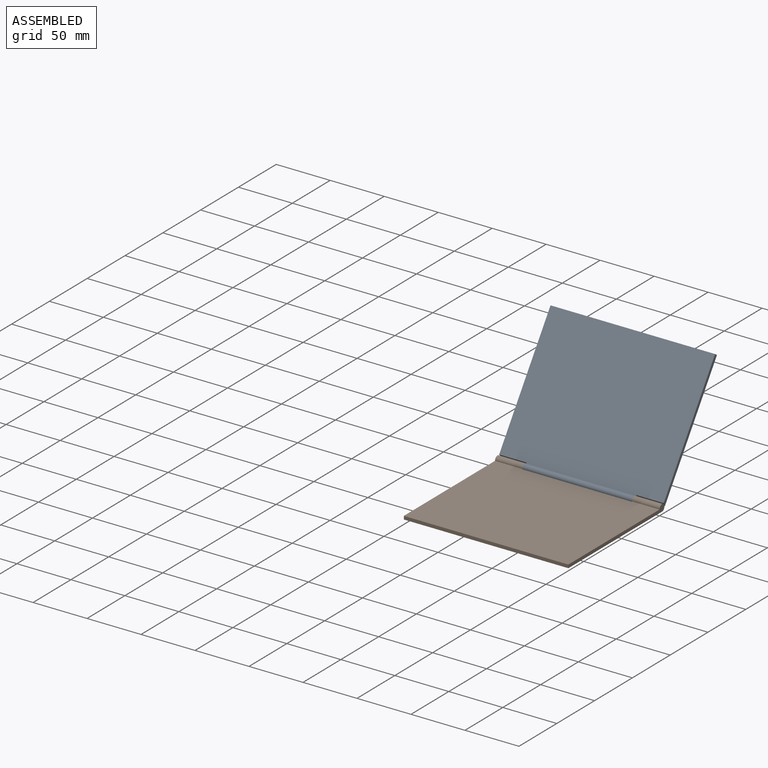
[diagram: assembled view]
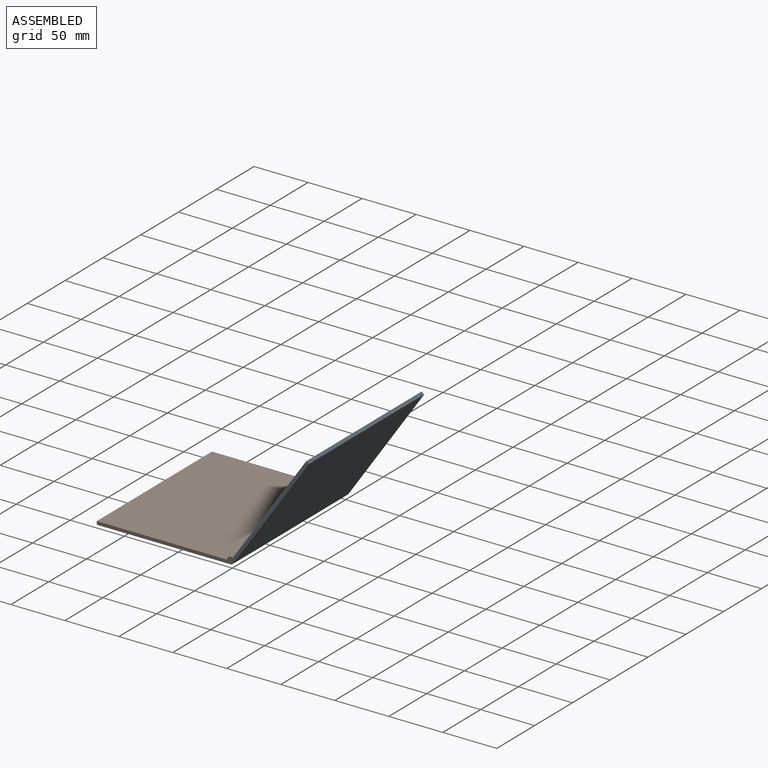
[diagram: assembled view, second angle]
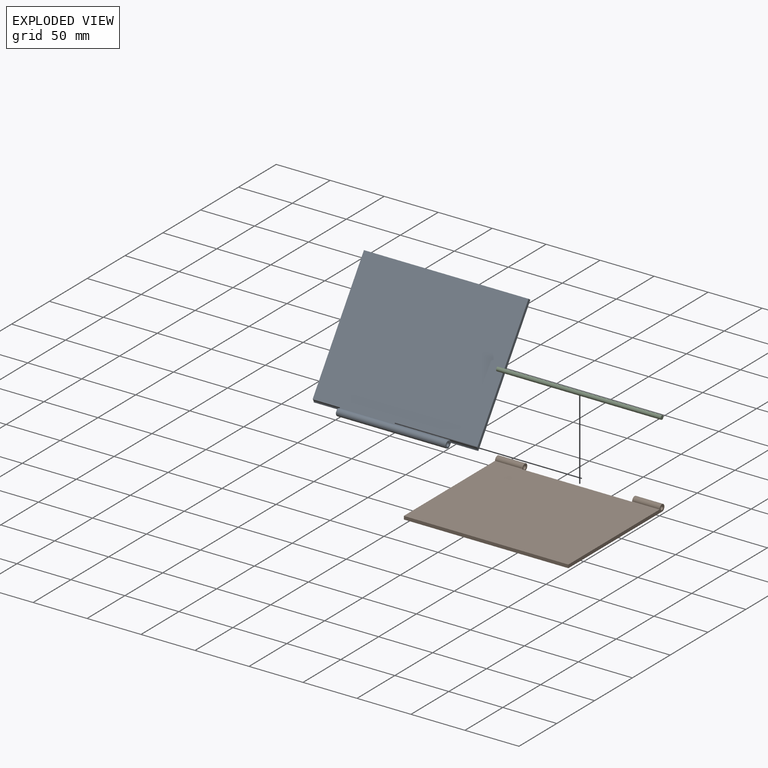
[diagram: exploded view]
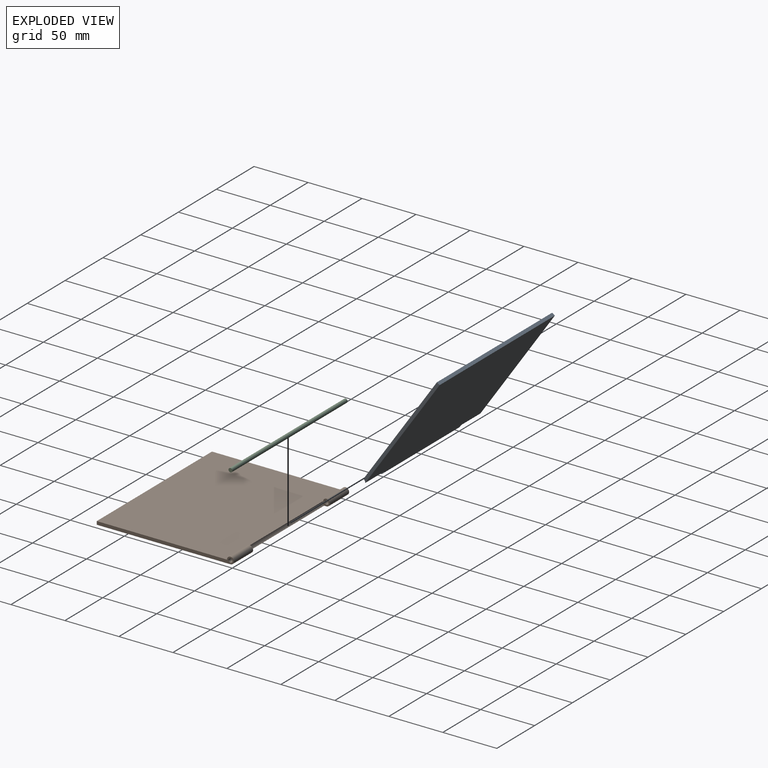
[diagram: exploded view, second angle]
ASSEMBLY  parts=3 mates=2
PART A: 11 faces, bbox 152.4x127x6.4 mm
  f0: cylinder r=3.17mm len=101.6mm, axis (-1,0,0), area 1533mm2, adj f1,f2,f6,f9
  f1: plane 152.4x123.83mm, normal (0,0,-1), area 18763.9mm2, adj f0,f3,f4,f5,f6,f7,f8,f9
  f2: plane 152.4x120.65mm, normal (0,0,1), area 18355.2mm2, adj f0,f3,f4,f5,f6,f7,f8,f9
  f3: plane 121.72x3.05mm, normal (1,0,0), area 367.4mm2, adj f1,f2,f4,f8
  f4: plane 152.4x3.05mm, normal (0,1,0), area 464.5mm2, adj f1,f2,f3,f5
  f5: plane 121.72x3.05mm, normal (-1,0,0), area 367.4mm2, adj f1,f2,f4,f7
  f6: plane 6.98x6.35mm, normal (-1,0,0), area 23.5mm2, adj f0,f1,f2,f7,f10
  f7: cylinder r=3.81mm len=25.4mm, axis (-1,0,0), area 92.1mm2, adj f1,f2,f5,f6
  f8: cylinder r=3.81mm len=25.4mm, axis (-1,0,0), area 92.1mm2, adj f1,f2,f3,f9
  f9: plane 6.98x6.35mm, normal (1,0,0), area 23.5mm2, adj f0,f1,f2,f8,f10
  f10: cylinder r=1.84mm len=101.6mm, axis (-1,0,0), area 1175.6mm2, adj f6,f9
PART B: 12 faces, bbox 152.4x127x6.4 mm
  f0: cylinder r=3.17mm len=25.4mm, axis (-1,0,0), area 383.3mm2, adj f3,f5,f8,f11
  f1: cylinder r=1.82mm len=25.4mm, axis (-1,0,0), area 289.8mm2, adj f8,f11
  f2: plane 152.4x3.05mm, normal (0,-1,0), area 464.5mm2, adj f3,f5,f7,f8
  f3: plane 152.4x123.83mm, normal (0,0,-1), area 18657mm2, adj f0,f2,f4,f7,f8,f9,f10,f11
  f4: cylinder r=3.17mm len=25.4mm, axis (-1,0,0), area 383.3mm2, adj f3,f5,f7,f10
  f5: plane 152.4x120.65mm, normal (0,0,1), area 18322.9mm2, adj f0,f2,f4,f7,f8,f9,f10,f11
  f6: cylinder r=1.82mm len=25.4mm, axis (-1,0,0), area 289.8mm2, adj f7,f10
  f7: plane 127x6.35mm, normal (1,0,0), area 391.2mm2, adj f2,f3,f4,f5,f6
  f8: plane 127x6.35mm, normal (-1,0,0), area 391.2mm2, adj f0,f1,f2,f3,f5
  f9: cylinder r=3.81mm len=101.6mm, axis (-1,0,0), area 368.4mm2, adj f3,f5,f10,f11
  f10: plane 6.98x6.35mm, normal (-1,0,0), area 23.8mm2, adj f3,f4,f5,f6,f9
  f11: plane 6.98x6.35mm, normal (1,0,0), area 23.8mm2, adj f0,f1,f3,f5,f9
PART C: 3 faces, bbox 152.4x3.6x3.6 mm
  f0: plane 3.63x3.63mm, normal (1,0,0), area 10.4mm2, adj f1
  f1: cylinder r=1.82mm len=152.4mm, axis (-1,0,0), area 1739mm2, adj f0,f2
  f2: plane 3.63x3.63mm, normal (-1,0,0), area 10.4mm2, adj f1
PLACE A rot(axis=(1,0,0),55.5deg) t=(0,0,0)mm
PLACE B at identity
PLACE C at identity
MATE revolute B.f1 <-> A.f0  axis (1,0,0) through (25.4,0,0)mm
MATE fastened B.f1 <-> C.f1  axis (-1,0,0) through (0,0,0)mm
